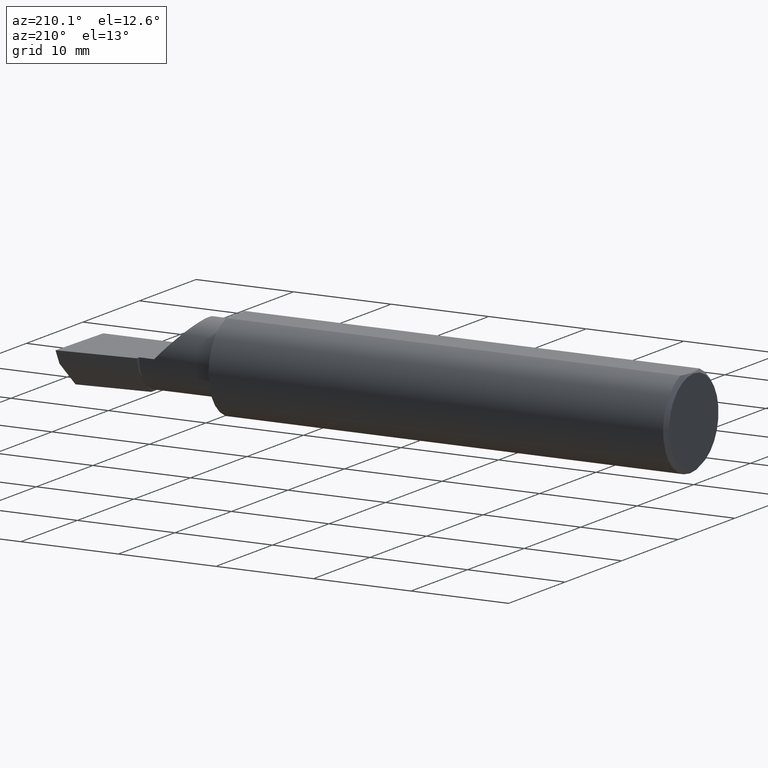
[diagram: clean part render]
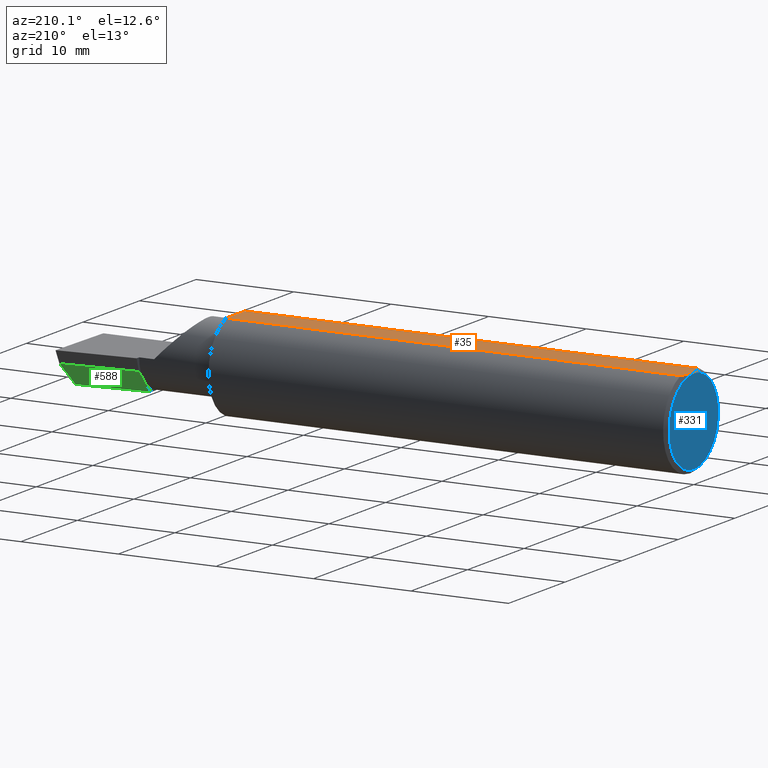
[diagram: same view with three faces highlighted in distinct colors, each labeled with its STEP entity id]
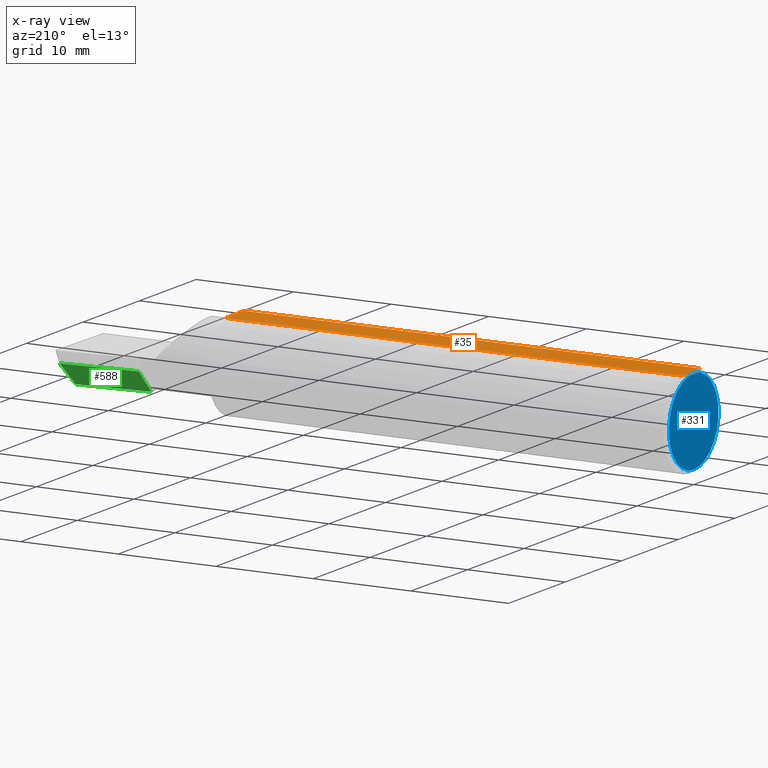
[diagram: x-ray of the same camera — body ghosted, the three highlighted faces saturated]
A machine part, auxiliary view with three faces highlighted in distinct colors.
The next image is the same camera in x-ray (body ghosted, the three faces saturated) — at least one of them is partly hidden behind the body in this view.
Their STEP definitions:

[orange] entity #35 — the highlighted planar face has unit normal (0, -0, -1).
#5 = DIRECTION ( 'NONE',  ( 0.000000000000000000, -1.438723400918613551E-16, -1.000000000000000000 ) ) ;
#35 = ADVANCED_FACE ( 'NONE', ( #432 ), #291, .F. ) ;
#39 = CARTESIAN_POINT ( 'NONE',  ( 0.01499999999999997863, -0.06597272163553657975, 0.1753499999999999781 ) ) ;
#45 = EDGE_CURVE ( 'NONE', #570, #214, #340, .T. ) ;
#47 = LINE ( 'NONE', #473, #535 ) ;
#65 = DIRECTION ( 'NONE',  ( 1.000000000000000000, 0.000000000000000000, 0.000000000000000000 ) ) ;
#68 = CARTESIAN_POINT ( 'NONE',  ( 0.000000000000000000, 0.06597272163553663527, 0.1753499999999999781 ) ) ;
#82 = CARTESIAN_POINT ( 'NONE',  ( 0.004093196532652216939, -0.02240707710020816909, 0.1753499999999999504 ) ) ;
#83 = CARTESIAN_POINT ( 'NONE',  ( 0.008244775919947424855, 0.04453482769755855164, 0.1753499999999999504 ) ) ;
#86 = LINE ( 'NONE', #231, #101 ) ;
#88 = CARTESIAN_POINT ( 'NONE',  ( 1.850000000000000311, -0.06597272163553659363, 0.1753499999999999781 ) ) ;
#93 = CARTESIAN_POINT ( 'NONE',  ( 0.004115035183746292881, 0.02255629470626744487, 0.1753499999999999781 ) ) ;
#101 = VECTOR ( 'NONE', #423, 39.37007874015748143 ) ;
#111 = ORIENTED_EDGE ( 'NONE', *, *, #45, .F. ) ;
#133 = CARTESIAN_POINT ( 'NONE',  ( 0.008227791779583789808, -0.04447712204611815878, 0.1753499999999999781 ) ) ;
#139 = CARTESIAN_POINT ( 'NONE',  ( 0.003000000000000218638, 2.334609556160449697E-17, 0.1753499999999999781 ) ) ;
#178 = VERTEX_POINT ( 'NONE', #88 ) ;
#181 = ORIENTED_EDGE ( 'NONE', *, *, #209, .F. ) ;
#182 = EDGE_CURVE ( 'NONE', #178, #283, #47, .T. ) ;
#200 = DIRECTION ( 'NONE',  ( 0.000000000000000000, 1.000000000000000000, -1.438723400918613551E-16 ) ) ;
#209 = EDGE_CURVE ( 'NONE', #438, #570, #464, .T. ) ;
#213 = B_SPLINE_CURVE_WITH_KNOTS ( 'NONE', 3,
 ( #39, #359, #133, #82, #319, #139 ),
 .UNSPECIFIED., .F., .F.,
 ( 4, 2, 4 ),
 ( 0.001779942938356815062, 0.002629978419973711019, 0.003480013901590607410 ),
 .UNSPECIFIED. ) ;
#214 = VERTEX_POINT ( 'NONE', #273 ) ;
#231 = CARTESIAN_POINT ( 'NONE',  ( 1.850000000000000311, 0.2373500000000000332, 0.1753499999999999504 ) ) ;
#232 = ORIENTED_EDGE ( 'NONE', *, *, #238, .F. ) ;
#238 = EDGE_CURVE ( 'NONE', #214, #178, #86, .T. ) ;
#273 = CARTESIAN_POINT ( 'NONE',  ( 1.850000000000000311, 0.06597272163553663527, 0.1753499999999999781 ) ) ;
#283 = VERTEX_POINT ( 'NONE', #470 ) ;
#284 = DIRECTION ( 'NONE',  ( -1.000000000000000000, -0.000000000000000000, -0.000000000000000000 ) ) ;
#291 = PLANE ( 'NONE',  #306 ) ;
#306 = AXIS2_PLACEMENT_3D ( 'NONE', #437, #5, #200 ) ;
#319 = CARTESIAN_POINT ( 'NONE',  ( 0.003000000000000172667, -0.01126410975715121283, 0.1753500000000000059 ) ) ;
#324 = CARTESIAN_POINT ( 'NONE',  ( 0.003000000000000169632, 0.01127363201155560934, 0.1753499999999999781 ) ) ;
#330 = EDGE_LOOP ( 'NONE', ( #232, #111, #181, #548, #505 ) ) ;
#334 = CARTESIAN_POINT ( 'NONE',  ( 0.003000000000000218638, 2.334609556160449697E-17, 0.1753499999999999781 ) ) ;
#340 = LINE ( 'NONE', #68, #351 ) ;
#351 = VECTOR ( 'NONE', #65, 39.37007874015748143 ) ;
#359 = CARTESIAN_POINT ( 'NONE',  ( 0.01128414053810044941, -0.05542038647445821781, 0.1753499999999999781 ) ) ;
#419 = CARTESIAN_POINT ( 'NONE',  ( 0.01125230581755086272, 0.05532998191409922023, 0.1753500000000000059 ) ) ;
#423 = DIRECTION ( 'NONE',  ( 6.829619984160658046E-18, -1.000000000000000000, 1.438723400918613551E-16 ) ) ;
#432 = FACE_OUTER_BOUND ( 'NONE', #330, .T. ) ;
#437 = CARTESIAN_POINT ( 'NONE',  ( 2.500000000000000000, 0.2373500000000000332, 0.1753499999999999504 ) ) ;
#438 = VERTEX_POINT ( 'NONE', #334 ) ;
#464 = B_SPLINE_CURVE_WITH_KNOTS ( 'NONE', 3,
 ( #516, #324, #93, #83, #419, #559 ),
 .UNSPECIFIED., .F., .F.,
 ( 4, 2, 4 ),
 ( 0.003480013901590607410, 0.004330767971208083697, 0.005181522040825559984 ),
 .UNSPECIFIED. ) ;
#470 = CARTESIAN_POINT ( 'NONE',  ( 0.01499999999999997863, -0.06597272163553657975, 0.1753499999999999781 ) ) ;
#473 = CARTESIAN_POINT ( 'NONE',  ( 0.000000000000000000, -0.06597272163553657975, 0.1753499999999999781 ) ) ;
#505 = ORIENTED_EDGE ( 'NONE', *, *, #182, .F. ) ;
#516 = CARTESIAN_POINT ( 'NONE',  ( 0.003000000000000218638, 2.334609556160449697E-17, 0.1753499999999999781 ) ) ;
#535 = VECTOR ( 'NONE', #284, 39.37007874015748143 ) ;
#539 = CARTESIAN_POINT ( 'NONE',  ( 0.01499999999999999424, 0.06597272163553663527, 0.1753499999999999781 ) ) ;
#548 = ORIENTED_EDGE ( 'NONE', *, *, #621, .F. ) ;
#559 = CARTESIAN_POINT ( 'NONE',  ( 0.01499999999999999424, 0.06597272163553663527, 0.1753499999999999781 ) ) ;
#570 = VERTEX_POINT ( 'NONE', #539 ) ;
#621 = EDGE_CURVE ( 'NONE', #283, #438, #213, .T. ) ;

[blue] entity #331 — the highlighted planar face has unit normal (1, 0, 0).
#28 = VERTEX_POINT ( 'NONE', #94 ) ;
#44 = EDGE_LOOP ( 'NONE', ( #262, #591 ) ) ;
#94 = CARTESIAN_POINT ( 'NONE',  ( 0.000000000000000000, 0.000000000000000000, -0.1723499999999996424 ) ) ;
#102 = CARTESIAN_POINT ( 'NONE',  ( 0.000000000000000000, 0.000000000000000000, 0.000000000000000000 ) ) ;
#149 = CIRCLE ( 'NONE', #436, 0.1723499999999996424 ) ;
#177 = CIRCLE ( 'NONE', #469, 0.1723499999999996424 ) ;
#199 = FACE_OUTER_BOUND ( 'NONE', #44, .T. ) ;
#207 = DIRECTION ( 'NONE',  ( -1.000000000000000000, -0.000000000000000000, -0.000000000000000000 ) ) ;
#240 = DIRECTION ( 'NONE',  ( 0.000000000000000000, 0.000000000000000000, 1.000000000000000000 ) ) ;
#241 = CARTESIAN_POINT ( 'NONE',  ( 0.000000000000000000, 2.202527268266512578E-17, 0.1723499999999996424 ) ) ;
#262 = ORIENTED_EDGE ( 'NONE', *, *, #561, .T. ) ;
#290 = DIRECTION ( 'NONE',  ( -1.000000000000000000, -0.000000000000000000, -0.000000000000000000 ) ) ;
#308 = CARTESIAN_POINT ( 'NONE',  ( 0.000000000000000000, 0.000000000000000000, 0.000000000000000000 ) ) ;
#331 = ADVANCED_FACE ( 'NONE', ( #199 ), #429, .F. ) ;
#339 = DIRECTION ( 'NONE',  ( 1.000000000000000000, 0.000000000000000000, 0.000000000000000000 ) ) ;
#350 = VERTEX_POINT ( 'NONE', #241 ) ;
#388 = DIRECTION ( 'NONE',  ( 0.000000000000000000, 0.000000000000000000, -1.000000000000000000 ) ) ;
#429 = PLANE ( 'NONE',  #497 ) ;
#431 = CARTESIAN_POINT ( 'NONE',  ( 0.000000000000000000, 0.000000000000000000, 0.000000000000000000 ) ) ;
#436 = AXIS2_PLACEMENT_3D ( 'NONE', #308, #207, #504 ) ;
#469 = AXIS2_PLACEMENT_3D ( 'NONE', #102, #290, #240 ) ;
#489 = EDGE_CURVE ( 'NONE', #350, #28, #177, .T. ) ;
#497 = AXIS2_PLACEMENT_3D ( 'NONE', #431, #339, #388 ) ;
#504 = DIRECTION ( 'NONE',  ( 0.000000000000000000, 0.000000000000000000, 1.000000000000000000 ) ) ;
#561 = EDGE_CURVE ( 'NONE', #28, #350, #149, .T. ) ;
#591 = ORIENTED_EDGE ( 'NONE', *, *, #489, .T. ) ;

[green] entity #588 — the highlighted planar face has unit normal (-0.0689, 0.716, -0.6947).
#12 = DIRECTION ( 'NONE',  ( -0.9953961983671800740, -0.09584575252021031166, 0.000000000000000000 ) ) ;
#13 = AXIS2_PLACEMENT_3D ( 'NONE', #112, #201, #404 ) ;
#26 = CARTESIAN_POINT ( 'NONE',  ( 2.511419111345317923, 0.1163922996227946260, -0.04999999999999999584 ) ) ;
#30 = LINE ( 'NONE', #276, #71 ) ;
#71 = VECTOR ( 'NONE', #360, 39.37007874015748854 ) ;
#74 = DIRECTION ( 'NONE',  ( 4.755568962650852797E-18, -0.6963153109074924352, -0.7177360153954948085 ) ) ;
#81 = VERTEX_POINT ( 'NONE', #167 ) ;
#110 = EDGE_CURVE ( 'NONE', #406, #81, #346, .T. ) ;
#112 = CARTESIAN_POINT ( 'NONE',  ( 2.511419111345317923, 0.1163922996227946260, -0.04999999999999999584 ) ) ;
#118 = CARTESIAN_POINT ( 'NONE',  ( 2.189999999999999947, 0.06670933817657886955, -0.06931012851386068874 ) ) ;
#120 = CARTESIAN_POINT ( 'NONE',  ( 2.189999999999999947, 0.06670933817657886955, -0.06931012851386068874 ) ) ;
#142 = EDGE_LOOP ( 'NONE', ( #361, #377, #268, #618, #164, #210 ) ) ;
#154 = CARTESIAN_POINT ( 'NONE',  ( 2.493439983562941720, 0.1146611065212079089, -0.04999999999999999584 ) ) ;
#156 = EDGE_CURVE ( 'NONE', #512, #524, #349, .T. ) ;
#159 = PLANE ( 'NONE',  #13 ) ;
#164 = ORIENTED_EDGE ( 'NONE', *, *, #552, .F. ) ;
#167 = CARTESIAN_POINT ( 'NONE',  ( 2.189999999999999947, 0.08544315931885974880, -0.04999999999999999584 ) ) ;
#201 = DIRECTION ( 'NONE',  ( -0.06894566448119621160, 0.7160281025913034503, -0.6946583704589934793 ) ) ;
#210 = ORIENTED_EDGE ( 'NONE', *, *, #110, .F. ) ;
#259 = CARTESIAN_POINT ( 'NONE',  ( 2.189999999999999947, 0.06026672169836850418, -0.07595093880103591377 ) ) ;
#268 = ORIENTED_EDGE ( 'NONE', *, *, #156, .F. ) ;
#276 = CARTESIAN_POINT ( 'NONE',  ( 2.491859106488688358, 0.02714641170210413054, -0.1400500000000000633 ) ) ;
#293 = DIRECTION ( 'NONE',  ( 4.755568962650852797E-18, -0.6963153109074924352, -0.7177360153954948085 ) ) ;
#315 = VECTOR ( 'NONE', #74, 39.37007874015748854 ) ;
#320 = EDGE_CURVE ( 'NONE', #614, #524, #30, .T. ) ;
#341 = VECTOR ( 'NONE', #293, 39.37007874015748854 ) ;
#343 = EDGE_CURVE ( 'NONE', #557, #512, #486, .T. ) ;
#346 = LINE ( 'NONE', #26, #567 ) ;
#349 = LINE ( 'NONE', #120, #315 ) ;
#353 = LINE ( 'NONE', #118, #415 ) ;
#357 = CARTESIAN_POINT ( 'NONE',  ( 2.189999999999999947, -0.001919314351446948456, -0.1400500000000000911 ) ) ;
#360 = DIRECTION ( 'NONE',  ( -0.9953961983671800740, -0.09584575252021031166, -1.093478026937437817E-17 ) ) ;
#361 = ORIENTED_EDGE ( 'NONE', *, *, #448, .F. ) ;
#372 = VECTOR ( 'NONE', #477, 39.37007874015748854 ) ;
#377 = ORIENTED_EDGE ( 'NONE', *, *, #320, .T. ) ;
#378 = LINE ( 'NONE', #442, #372 ) ;
#390 = CARTESIAN_POINT ( 'NONE',  ( 2.189999999999999947, 0.06670933817657886955, -0.06931012851386068874 ) ) ;
#404 = DIRECTION ( 'NONE',  ( 0.000000000000000000, 0.6963153109074925462, 0.7177360153954948085 ) ) ;
#406 = VERTEX_POINT ( 'NONE', #154 ) ;
#415 = VECTOR ( 'NONE', #447, 39.37007874015748854 ) ;
#442 = CARTESIAN_POINT ( 'NONE',  ( 2.493766568580444432, 0.1168246249203732934, -0.04780233936830599606 ) ) ;
#447 = DIRECTION ( 'NONE',  ( 4.755568962650852797E-18, -0.6963153109074924352, -0.7177360153954948085 ) ) ;
#448 = EDGE_CURVE ( 'NONE', #614, #406, #378, .T. ) ;
#452 = FACE_OUTER_BOUND ( 'NONE', #142, .T. ) ;
#477 = DIRECTION ( 'NONE',  ( 0.1053106618240635256, 0.6976485211320200275, 0.7086580314005359593 ) ) ;
#486 = LINE ( 'NONE', #390, #341 ) ;
#512 = VERTEX_POINT ( 'NONE', #549 ) ;
#524 = VERTEX_POINT ( 'NONE', #357 ) ;
#549 = CARTESIAN_POINT ( 'NONE',  ( 2.189999999999999947, 0.02208021110064902273, -0.1153121786430049006 ) ) ;
#552 = EDGE_CURVE ( 'NONE', #81, #557, #353, .T. ) ;
#557 = VERTEX_POINT ( 'NONE', #259 ) ;
#567 = VECTOR ( 'NONE', #12, 39.37007874015748854 ) ;
#575 = CARTESIAN_POINT ( 'NONE',  ( 2.480058035321255794, 0.02601009779168077587, -0.1400500000000000633 ) ) ;
#588 = ADVANCED_FACE ( 'NONE', ( #452 ), #159, .T. ) ;
#614 = VERTEX_POINT ( 'NONE', #575 ) ;
#618 = ORIENTED_EDGE ( 'NONE', *, *, #343, .F. ) ;